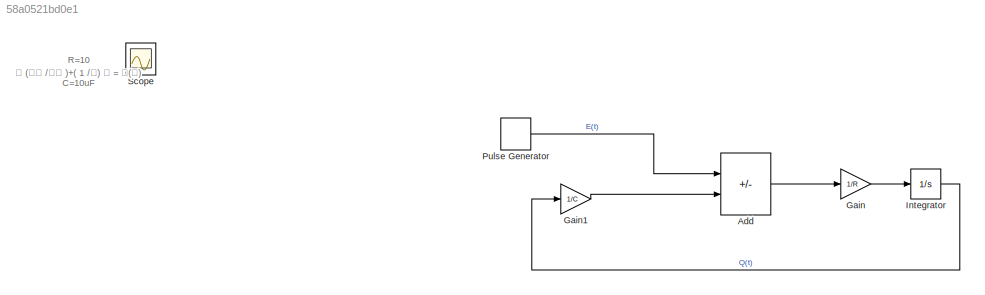
MODEL slx_58a0521bd0e1
KIND model
CONFIG AbsTol = auto
CONFIG EnableMultiTasking = off
CONFIG FixedStep = auto
CONFIG MaxStep = auto
CONFIG MinStep = auto
CONFIG RelTol = 1e-3
CONFIG SampleTimeConstraint = Unconstrained
CONFIG SolverName = VariableStepAuto
CONFIG StartTime = 0.0
CONFIG StopTime = 10.0
BLOCK [Sum] Add
  IconShape = rectangular
  Inputs = +-
  Ports = [2, 1]
BLOCK [Gain] Gain
  Gain = 1/R
BLOCK [Gain] Gain1
  Gain = 1/C
BLOCK [Integrator] Integrator
  Ports = [1, 1]
BLOCK [DiscretePulseGenerator] Pulse Generator
  Period = 10
  Ports = [0, 1]
  PulseType = Time based
  PulseWidth = 50
BLOCK [Scope] Scope
  Floating = off
  IOType = viewer
  NumInputPorts = 1
  Ports = []
  ScopeSpecificationString = Simulink.scopes.TimeScopeBlockCfg('CurrentConfiguration', extmgr.ConfigurationSet(extmgr.Configuration('Core','General UI',true),extmgr.Configuration('Core','Source UI',true),extmgr.Configuration('Sources','WiredSimulink',true),extmgr.Configuration('Visuals','Time Domain',true,'SerializedDisplays',{struct('MinYLimReal','-0.000001','MaxYLimReal','0.000011','YLabelReal','','MinYLimMag','0.000000','M...<+1359ch>
ANNOTATION (root): 𝑅 (𝑑𝑄 /𝑑𝑡 )+( 1 /𝐶) 𝑄 = 𝐸(𝑡) R=10 C=10uF
LINE Add:1 -> Gain:1
LINE Gain1:1 -> Add:2
LINE Gain:1 -> Integrator:1
LINE Integrator:1 -> Gain1:1
LINE Pulse Generator:1 -> Add:1
